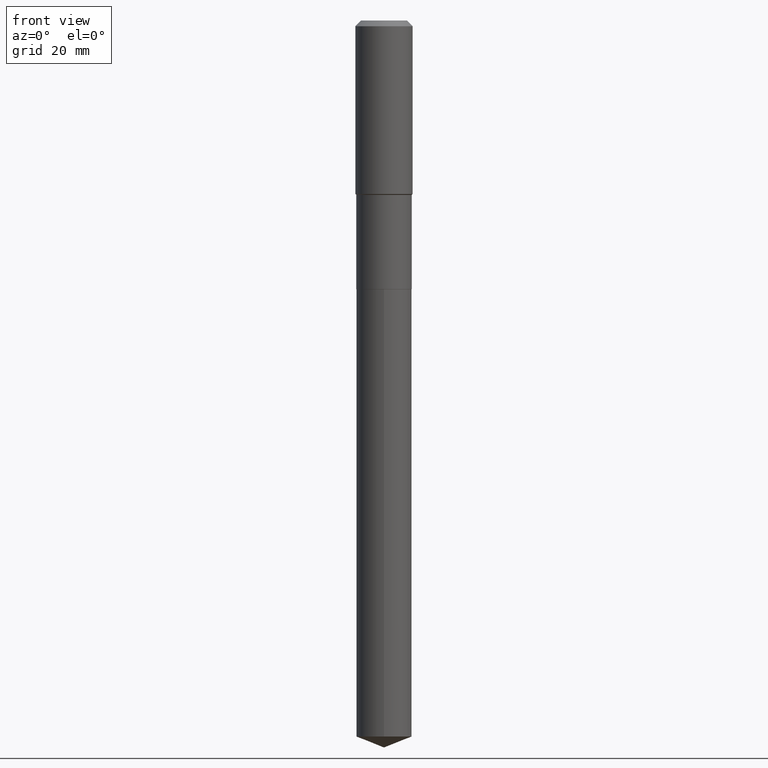
[diagram: clean part render]
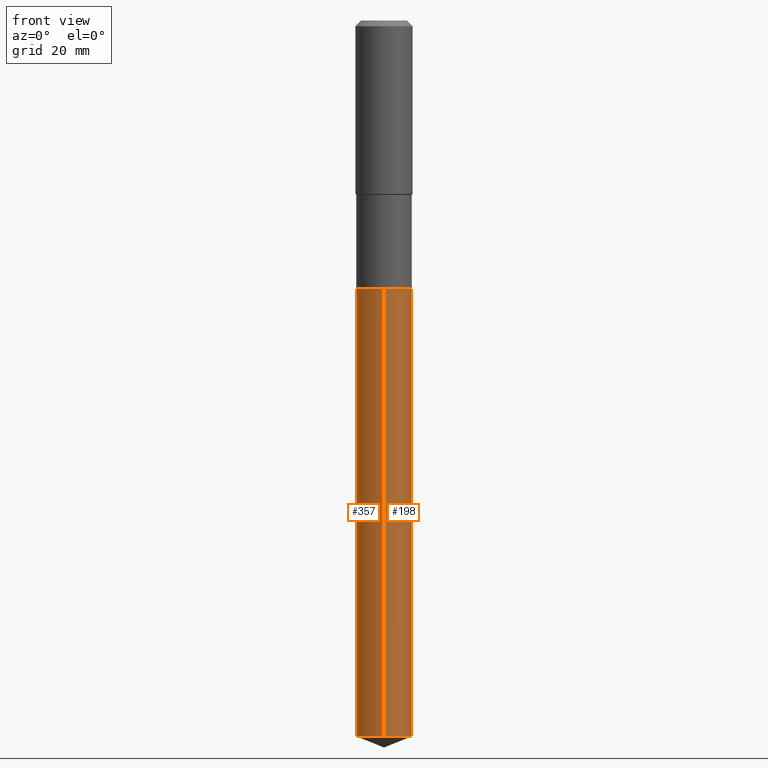
[diagram: same view with one multi-face feature highlighted, each face labeled with its STEP entity id]
A machine part, front view. The highlighted faces form ONE feature: a constant-radius fillet chain: 2 tangent blend faces with common blend radius 7.7495 mm. The faces share edges in the B-rep.
Their STEP definitions:
[1] entity #357 (Cylinder):
#21 = CARTESIAN_POINT ( 'NONE',  ( 1.925057921245601047E-28, -2.748458359727601433E-14, -7.871917913889882712 ) ) ;
#51 = CARTESIAN_POINT ( 'NONE',  ( 2.167865886804137722E-15, 0.3050999999999896573, -2.952700000000001435 ) ) ;
#62 = DIRECTION ( 'NONE',  ( -2.445478870628142678E-29, 3.491466925987928451E-15, 1.000000000000000000 ) ) ;
#67 = DIRECTION ( 'NONE',  ( -6.982962677686265133E-15, -1.000000000000000000, 3.581577179500837048E-15 ) ) ;
#84 = AXIS2_PLACEMENT_3D ( 'NONE', #21, #62, #444 ) ;
#86 = ORIENTED_EDGE ( 'NONE', *, *, #486, .T. ) ;
#88 = CARTESIAN_POINT ( 'NONE',  ( -2.130501912962007294E-15, -0.3051000000000103074, -2.952699999999999214 ) ) ;
#99 = DIRECTION ( 'NONE',  ( -2.445478870628142678E-29, 3.491466925987928451E-15, 1.000000000000000000 ) ) ;
#116 = EDGE_CURVE ( 'NONE', #487, #239, #185, .T. ) ;
#119 = EDGE_LOOP ( 'NONE', ( #351, #360, #86, #227 ) ) ;
#132 = CYLINDRICAL_SURFACE ( 'NONE', #276, 0.3050999999999999823 ) ;
#181 = VERTEX_POINT ( 'NONE', #267 ) ;
#185 = LINE ( 'NONE', #51, #361 ) ;
#189 = DIRECTION ( 'NONE',  ( -2.445478870628142678E-29, 3.491466925987928451E-15, 1.000000000000000000 ) ) ;
#201 = VERTEX_POINT ( 'NONE', #88 ) ;
#227 = ORIENTED_EDGE ( 'NONE', *, *, #287, .F. ) ;
#233 = EDGE_CURVE ( 'NONE', #487, #181, #382, .T. ) ;
#239 = VERTEX_POINT ( 'NONE', #473 ) ;
#267 = CARTESIAN_POINT ( 'NONE',  ( -2.130501912961886993E-15, -0.3051000000000273493, -7.871917913889880936 ) ) ;
#276 = AXIS2_PLACEMENT_3D ( 'NONE', #439, #99, #365 ) ;
#279 = FACE_OUTER_BOUND ( 'NONE', #119, .T. ) ;
#287 = EDGE_CURVE ( 'NONE', #239, #201, #403, .T. ) ;
#292 = LINE ( 'NONE', #372, #434 ) ;
#332 = DIRECTION ( 'NONE',  ( -2.445478870628142678E-29, 3.491466925987928451E-15, 1.000000000000000000 ) ) ;
#337 = DIRECTION ( 'NONE',  ( -2.445478870628142678E-29, 3.491466925987928451E-15, 1.000000000000000000 ) ) ;
#351 = ORIENTED_EDGE ( 'NONE', *, *, #116, .F. ) ;
#357 = ADVANCED_FACE ( 'NONE', ( #279 ), #132, .T. ) ;
#360 = ORIENTED_EDGE ( 'NONE', *, *, #233, .T. ) ;
#361 = VECTOR ( 'NONE', #189, 39.37007874015748143 ) ;
#365 = DIRECTION ( 'NONE',  ( -6.982962677686265133E-15, -1.000000000000000000, 3.581577179500837048E-15 ) ) ;
#372 = CARTESIAN_POINT ( 'NONE',  ( -2.130501912962007294E-15, -0.3051000000000103074, -2.952699999999999214 ) ) ;
#382 = CIRCLE ( 'NONE', #84, 0.3050999999999999268 ) ;
#403 = CIRCLE ( 'NONE', #417, 0.3050999999999999823 ) ;
#407 = CARTESIAN_POINT ( 'NONE',  ( 7.220735744022853640E-29, -1.030929694920215659E-14, -2.952700000000000546 ) ) ;
#413 = CARTESIAN_POINT ( 'NONE',  ( 2.167865886804257235E-15, 0.3050999999999724488, -7.871917913889883600 ) ) ;
#417 = AXIS2_PLACEMENT_3D ( 'NONE', #407, #332, #67 ) ;
#434 = VECTOR ( 'NONE', #337, 39.37007874015748143 ) ;
#439 = CARTESIAN_POINT ( 'NONE',  ( 7.220735744022853640E-29, -1.030929694920215659E-14, -2.952700000000000546 ) ) ;
#444 = DIRECTION ( 'NONE',  ( -6.982962677686265133E-15, -1.000000000000000000, 3.581577179500837836E-15 ) ) ;
#473 = CARTESIAN_POINT ( 'NONE',  ( 2.167865886804258812E-15, 0.3050999999999896573, -2.952700000000001435 ) ) ;
#486 = EDGE_CURVE ( 'NONE', #181, #201, #292, .T. ) ;
#487 = VERTEX_POINT ( 'NONE', #413 ) ;
[2] entity #198 (Cylinder):
#33 = DIRECTION ( 'NONE',  ( -6.982962677686265133E-15, -1.000000000000000000, 3.581577179500837048E-15 ) ) ;
#51 = CARTESIAN_POINT ( 'NONE',  ( 2.167865886804137722E-15, 0.3050999999999896573, -2.952700000000001435 ) ) ;
#59 = CARTESIAN_POINT ( 'NONE',  ( 7.220735744022853640E-29, -1.030929694920215659E-14, -2.952700000000000546 ) ) ;
#64 = DIRECTION ( 'NONE',  ( -2.445478870628142678E-29, 3.491466925987928451E-15, 1.000000000000000000 ) ) ;
#77 = EDGE_CURVE ( 'NONE', #201, #239, #349, .T. ) ;
#88 = CARTESIAN_POINT ( 'NONE',  ( -2.130501912962007294E-15, -0.3051000000000103074, -2.952699999999999214 ) ) ;
#96 = CARTESIAN_POINT ( 'NONE',  ( 1.925057921245601047E-28, -2.748458359727601433E-14, -7.871917913889882712 ) ) ;
#112 = ORIENTED_EDGE ( 'NONE', *, *, #335, .T. ) ;
#116 = EDGE_CURVE ( 'NONE', #487, #239, #185, .T. ) ;
#129 = CIRCLE ( 'NONE', #479, 0.3050999999999999268 ) ;
#181 = VERTEX_POINT ( 'NONE', #267 ) ;
#185 = LINE ( 'NONE', #51, #361 ) ;
#189 = DIRECTION ( 'NONE',  ( -2.445478870628142678E-29, 3.491466925987928451E-15, 1.000000000000000000 ) ) ;
#198 = ADVANCED_FACE ( 'NONE', ( #353 ), #395, .T. ) ;
#201 = VERTEX_POINT ( 'NONE', #88 ) ;
#211 = CARTESIAN_POINT ( 'NONE',  ( 7.220735744022853640E-29, -1.030929694920215659E-14, -2.952700000000000546 ) ) ;
#235 = ORIENTED_EDGE ( 'NONE', *, *, #116, .T. ) ;
#239 = VERTEX_POINT ( 'NONE', #473 ) ;
#246 = AXIS2_PLACEMENT_3D ( 'NONE', #59, #347, #469 ) ;
#267 = CARTESIAN_POINT ( 'NONE',  ( -2.130501912961886993E-15, -0.3051000000000273493, -7.871917913889880936 ) ) ;
#280 = DIRECTION ( 'NONE',  ( -2.445478870628142678E-29, 3.491466925987928451E-15, 1.000000000000000000 ) ) ;
#292 = LINE ( 'NONE', #372, #434 ) ;
#335 = EDGE_CURVE ( 'NONE', #181, #487, #129, .T. ) ;
#337 = DIRECTION ( 'NONE',  ( -2.445478870628142678E-29, 3.491466925987928451E-15, 1.000000000000000000 ) ) ;
#340 = EDGE_LOOP ( 'NONE', ( #112, #235, #428, #423 ) ) ;
#347 = DIRECTION ( 'NONE',  ( -2.445478870628142678E-29, 3.491466925987928451E-15, 1.000000000000000000 ) ) ;
#349 = CIRCLE ( 'NONE', #381, 0.3050999999999999823 ) ;
#353 = FACE_OUTER_BOUND ( 'NONE', #340, .T. ) ;
#359 = DIRECTION ( 'NONE',  ( -6.982962677686265133E-15, -1.000000000000000000, 3.581577179500837836E-15 ) ) ;
#361 = VECTOR ( 'NONE', #189, 39.37007874015748143 ) ;
#372 = CARTESIAN_POINT ( 'NONE',  ( -2.130501912962007294E-15, -0.3051000000000103074, -2.952699999999999214 ) ) ;
#381 = AXIS2_PLACEMENT_3D ( 'NONE', #211, #280, #33 ) ;
#395 = CYLINDRICAL_SURFACE ( 'NONE', #246, 0.3050999999999999823 ) ;
#413 = CARTESIAN_POINT ( 'NONE',  ( 2.167865886804257235E-15, 0.3050999999999724488, -7.871917913889883600 ) ) ;
#423 = ORIENTED_EDGE ( 'NONE', *, *, #486, .F. ) ;
#428 = ORIENTED_EDGE ( 'NONE', *, *, #77, .F. ) ;
#434 = VECTOR ( 'NONE', #337, 39.37007874015748143 ) ;
#469 = DIRECTION ( 'NONE',  ( -6.982962677686265133E-15, -1.000000000000000000, 3.581577179500837048E-15 ) ) ;
#473 = CARTESIAN_POINT ( 'NONE',  ( 2.167865886804258812E-15, 0.3050999999999896573, -2.952700000000001435 ) ) ;
#479 = AXIS2_PLACEMENT_3D ( 'NONE', #96, #64, #359 ) ;
#486 = EDGE_CURVE ( 'NONE', #181, #201, #292, .T. ) ;
#487 = VERTEX_POINT ( 'NONE', #413 ) ;